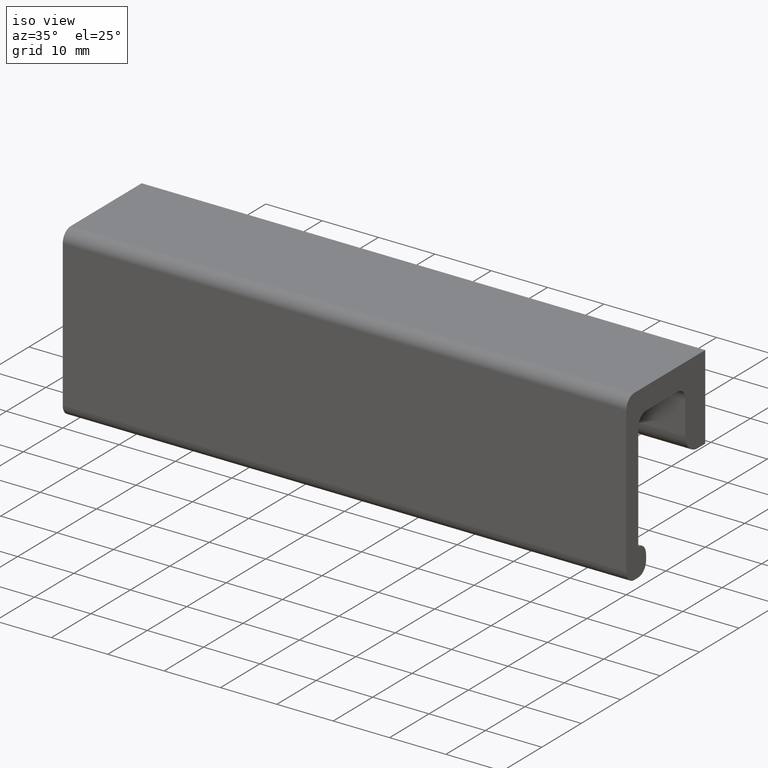
[diagram: clean part render]
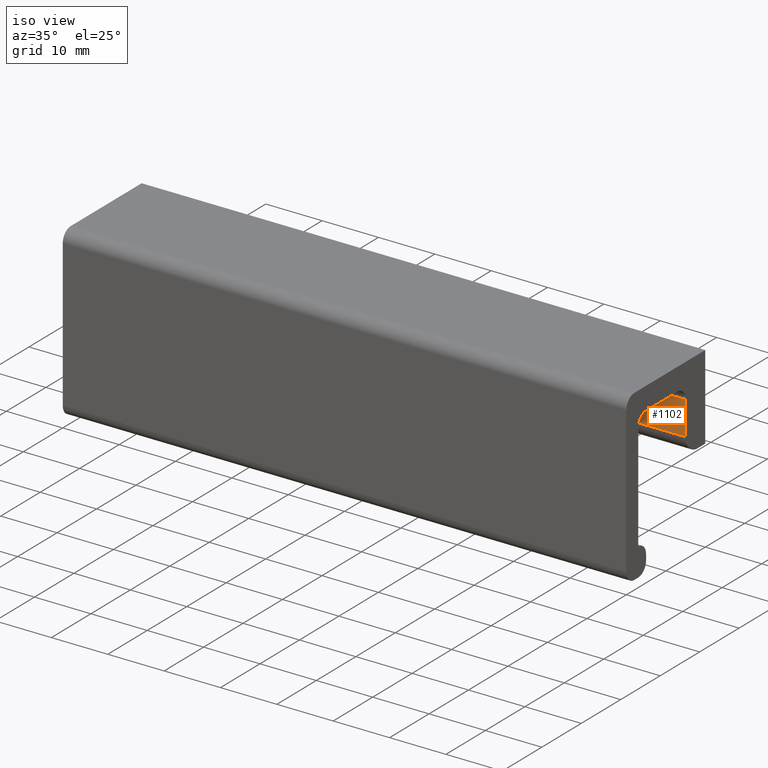
[diagram: same view with one face highlighted and labeled with its STEP entity id]
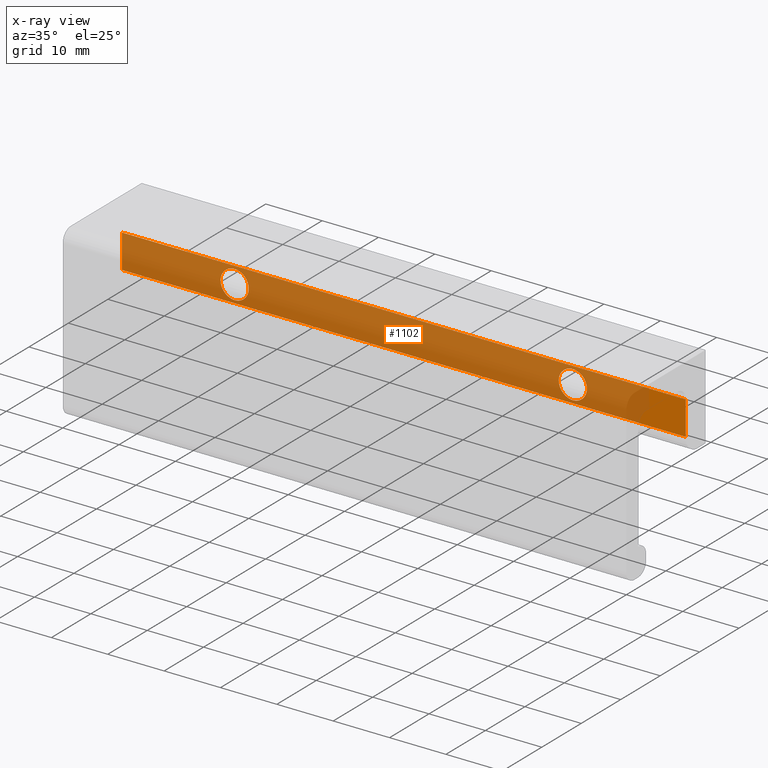
[diagram: x-ray of the same camera — body ghosted, the highlighted face saturated]
A machine part, iso view. The second image highlights one B-rep face of the part: STEP entity #1102.
The next image is the same camera in x-ray: the body ghosted, the highlighted face saturated — about 93% of this face is hidden behind the body in this view.
In plain terms, the highlighted face is a freeform B-spline surface patch.
Its self-contained STEP definition (entity closure, byte-faithful):
#96=CARTESIAN_POINT('',(22.492293334309771,-5.000000000000120,-9.196147739612506));
#97=VERTEX_POINT('',#96);
#103=CARTESIAN_POINT('',(20.0,-5.000000000000120,-6.499999999999999));
#104=VERTEX_POINT('',#103);
#105=CARTESIAN_POINT('',(22.492293334309771,-5.000000000000120,-9.196147739612506));
#106=CARTESIAN_POINT('',(22.500000000000000,-5.000000000000120,-9.098225267813426));
#107=CARTESIAN_POINT('',(22.500000000000000,-5.000000000000120,-9.0));
#108=CARTESIAN_POINT('',(22.500000000000000,-5.000000000000121,-6.499999999999999));
#109=CARTESIAN_POINT('',(20.0,-5.000000000000120,-6.499999999999999));
#117=(BOUNDED_CURVE()B_SPLINE_CURVE(2,(#105,#106,#107,#108,#109),.UNSPECIFIED.,.F.,.U.)B_SPLINE_CURVE_WITH_KNOTS((3,2,3),(0.736331300592475,0.750000000000000,1.0),.UNSPECIFIED.)CURVE()GEOMETRIC_REPRESENTATION_ITEM()RATIONAL_B_SPLINE_CURVE((0.969723356087730,0.983986122534146,1.0,0.707106781186548,1.0))REPRESENTATION_ITEM(''));
#118=EDGE_CURVE('',#97,#104,#117,.T.);
#120=CARTESIAN_POINT('',(17.507706665690240,-5.000000000000120,-8.803852260387494));
#121=VERTEX_POINT('',#120);
#122=CARTESIAN_POINT('',(20.0,-5.000000000000120,-6.499999999999999));
#123=CARTESIAN_POINT('',(17.689023771399341,-5.000000000000122,-6.499999999999999));
#124=CARTESIAN_POINT('',(17.507706665690236,-5.000000000000120,-8.803852260387494));
#132=(BOUNDED_CURVE()B_SPLINE_CURVE(2,(#122,#123,#124),.UNSPECIFIED.,.F.,.U.)B_SPLINE_CURVE_WITH_KNOTS((3,3),(0.0,0.236331300592475),.UNSPECIFIED.)CURVE()GEOMETRIC_REPRESENTATION_ITEM()RATIONAL_B_SPLINE_CURVE((1.0,0.723120658652401,0.969723356087730))REPRESENTATION_ITEM(''));
#133=EDGE_CURVE('',#104,#121,#132,.T.);
#179=CARTESIAN_POINT('',(20.0,-5.000000000000120,-11.500000000000000));
#180=VERTEX_POINT('',#179);
#181=CARTESIAN_POINT('',(17.507706665690232,-5.000000000000120,-8.803852260387494));
#182=CARTESIAN_POINT('',(17.500000000000004,-5.000000000000121,-8.901774732186572));
#183=CARTESIAN_POINT('',(17.500000000000000,-5.000000000000120,-9.0));
#184=CARTESIAN_POINT('',(17.499999999999996,-5.000000000000121,-11.500000000000000));
#185=CARTESIAN_POINT('',(20.0,-5.000000000000120,-11.500000000000000));
#193=(BOUNDED_CURVE()B_SPLINE_CURVE(2,(#181,#182,#183,#184,#185),.UNSPECIFIED.,.F.,.U.)B_SPLINE_CURVE_WITH_KNOTS((3,2,3),(0.236331300592475,0.250000000000000,0.500000000000000),.UNSPECIFIED.)CURVE()GEOMETRIC_REPRESENTATION_ITEM()RATIONAL_B_SPLINE_CURVE((0.969723356087730,0.983986122534146,1.0,0.707106781186548,1.0))REPRESENTATION_ITEM(''));
#194=EDGE_CURVE('',#121,#180,#193,.T.);
#196=CARTESIAN_POINT('',(20.0,-5.000000000000120,-11.500000000000000));
#197=CARTESIAN_POINT('',(22.310976228600680,-5.000000000000121,-11.499999999999998));
#198=CARTESIAN_POINT('',(22.492293334309764,-5.000000000000120,-9.196147739612506));
#206=(BOUNDED_CURVE()B_SPLINE_CURVE(2,(#196,#197,#198),.UNSPECIFIED.,.F.,.U.)B_SPLINE_CURVE_WITH_KNOTS((3,3),(0.500000000000000,0.736331300592476),.UNSPECIFIED.)CURVE()GEOMETRIC_REPRESENTATION_ITEM()RATIONAL_B_SPLINE_CURVE((1.0,0.723120658652400,0.969723356087732))REPRESENTATION_ITEM(''));
#207=EDGE_CURVE('',#180,#97,#206,.T.);
#278=CARTESIAN_POINT('',(82.492293334309764,-5.000000000000120,-9.196147739612506));
#279=VERTEX_POINT('',#278);
#285=CARTESIAN_POINT('',(80.0,-5.000000000000120,-6.499999999999999));
#286=VERTEX_POINT('',#285);
#287=CARTESIAN_POINT('',(82.492293334309764,-5.000000000000120,-9.196147739612506));
#288=CARTESIAN_POINT('',(82.500000000000000,-5.000000000000120,-9.098225267813426));
#289=CARTESIAN_POINT('',(82.500000000000000,-5.000000000000120,-9.0));
#290=CARTESIAN_POINT('',(82.500000000000000,-5.000000000000121,-6.499999999999999));
#291=CARTESIAN_POINT('',(80.0,-5.000000000000120,-6.499999999999999));
#299=(BOUNDED_CURVE()B_SPLINE_CURVE(2,(#287,#288,#289,#290,#291),.UNSPECIFIED.,.F.,.U.)B_SPLINE_CURVE_WITH_KNOTS((3,2,3),(0.736331300592475,0.750000000000000,1.0),.UNSPECIFIED.)CURVE()GEOMETRIC_REPRESENTATION_ITEM()RATIONAL_B_SPLINE_CURVE((0.969723356087730,0.983986122534146,1.0,0.707106781186548,1.0))REPRESENTATION_ITEM(''));
#300=EDGE_CURVE('',#279,#286,#299,.T.);
#302=CARTESIAN_POINT('',(77.507706665690222,-5.000000000000120,-8.803852260387494));
#303=VERTEX_POINT('',#302);
#304=CARTESIAN_POINT('',(80.0,-5.000000000000120,-6.499999999999999));
#305=CARTESIAN_POINT('',(77.689023771399320,-5.000000000000120,-6.499999999999999));
#306=CARTESIAN_POINT('',(77.507706665690222,-5.000000000000120,-8.803852260387494));
#314=(BOUNDED_CURVE()B_SPLINE_CURVE(2,(#304,#305,#306),.UNSPECIFIED.,.F.,.U.)B_SPLINE_CURVE_WITH_KNOTS((3,3),(0.0,0.236331300592475),.UNSPECIFIED.)CURVE()GEOMETRIC_REPRESENTATION_ITEM()RATIONAL_B_SPLINE_CURVE((1.0,0.723120658652401,0.969723356087730))REPRESENTATION_ITEM(''));
#315=EDGE_CURVE('',#286,#303,#314,.T.);
#361=CARTESIAN_POINT('',(80.0,-5.000000000000120,-11.500000000000000));
#362=VERTEX_POINT('',#361);
#363=CARTESIAN_POINT('',(77.507706665690222,-5.000000000000120,-8.803852260387494));
#364=CARTESIAN_POINT('',(77.500000000000000,-5.000000000000120,-8.901774732186572));
#365=CARTESIAN_POINT('',(77.500000000000000,-5.000000000000120,-9.0));
#366=CARTESIAN_POINT('',(77.500000000000014,-5.000000000000121,-11.500000000000000));
#367=CARTESIAN_POINT('',(80.0,-5.000000000000120,-11.500000000000000));
#375=(BOUNDED_CURVE()B_SPLINE_CURVE(2,(#363,#364,#365,#366,#367),.UNSPECIFIED.,.F.,.U.)B_SPLINE_CURVE_WITH_KNOTS((3,2,3),(0.236331300592475,0.250000000000000,0.500000000000000),.UNSPECIFIED.)CURVE()GEOMETRIC_REPRESENTATION_ITEM()RATIONAL_B_SPLINE_CURVE((0.969723356087730,0.983986122534146,1.0,0.707106781186548,1.0))REPRESENTATION_ITEM(''));
#376=EDGE_CURVE('',#303,#362,#375,.T.);
#378=CARTESIAN_POINT('',(80.0,-5.000000000000120,-11.500000000000000));
#379=CARTESIAN_POINT('',(82.310976228600694,-5.000000000000121,-11.499999999999998));
#380=CARTESIAN_POINT('',(82.492293334309764,-5.000000000000120,-9.196147739612506));
#388=(BOUNDED_CURVE()B_SPLINE_CURVE(2,(#378,#379,#380),.UNSPECIFIED.,.F.,.U.)B_SPLINE_CURVE_WITH_KNOTS((3,3),(0.500000000000000,0.736331300592476),.UNSPECIFIED.)CURVE()GEOMETRIC_REPRESENTATION_ITEM()RATIONAL_B_SPLINE_CURVE((1.0,0.723120658652400,0.969723356087732))REPRESENTATION_ITEM(''));
#389=EDGE_CURVE('',#362,#279,#388,.T.);
#451=CARTESIAN_POINT('',(0.0,-5.000000000000091,-12.0));
#452=VERTEX_POINT('',#451);
#466=CARTESIAN_POINT('',(0.0,-5.0,-6.0));
#467=VERTEX_POINT('',#466);
#468=CARTESIAN_POINT('',(0.0,-5.0,-6.0));
#469=CARTESIAN_POINT('',(0.0,-5.000000000000091,-12.0));
#470=QUASI_UNIFORM_CURVE('',1,(#468,#469),.UNSPECIFIED.,.F.,.U.);
#471=EDGE_CURVE('',#467,#452,#470,.T.);
#701=CARTESIAN_POINT('',(100.0,-5.0,-6.0));
#702=VERTEX_POINT('',#701);
#716=CARTESIAN_POINT('',(100.0,-5.000000000000091,-12.0));
#717=VERTEX_POINT('',#716);
#718=CARTESIAN_POINT('',(100.0,-5.0,-6.0));
#719=CARTESIAN_POINT('',(100.0,-5.000000000000091,-12.0));
#720=QUASI_UNIFORM_CURVE('',1,(#718,#719),.UNSPECIFIED.,.F.,.U.);
#721=EDGE_CURVE('',#702,#717,#720,.T.);
#817=CARTESIAN_POINT('',(100.0,-5.000000000000091,-12.0));
#818=CARTESIAN_POINT('',(0.0,-5.000000000000091,-12.0));
#819=QUASI_UNIFORM_CURVE('',1,(#817,#818),.UNSPECIFIED.,.F.,.U.);
#820=EDGE_CURVE('',#717,#452,#819,.T.);
#840=CARTESIAN_POINT('',(100.0,-5.0,-6.0));
#841=CARTESIAN_POINT('',(0.0,-5.0,-6.0));
#842=QUASI_UNIFORM_CURVE('',1,(#840,#841),.UNSPECIFIED.,.F.,.U.);
#843=EDGE_CURVE('',#702,#467,#842,.T.);
#1079=CARTESIAN_POINT('',(-4.994999806180597,-5.000000000000091,-12.299699988370840));
#1080=CARTESIAN_POINT('',(-4.994999806180597,-5.000000000000091,-5.700299850696622));
#1081=CARTESIAN_POINT('',(104.995002488389600,-5.000000000000091,-12.299699988370840));
#1082=CARTESIAN_POINT('',(104.995002488389600,-5.000000000000091,-5.700299850696622));
#1083=B_SPLINE_SURFACE_WITH_KNOTS('',1,1,((#1079,#1081),(#1080,#1082)),.UNSPECIFIED.,.F.,.F.,.U.,(2,2),(2,2),(0.0,6.599400137674216),(0.0,109.990002294570200),.UNSPECIFIED.);
#1084=ORIENTED_EDGE('',*,*,#471,.T.);
#1085=ORIENTED_EDGE('',*,*,#820,.F.);
#1086=ORIENTED_EDGE('',*,*,#721,.F.);
#1087=ORIENTED_EDGE('',*,*,#843,.T.);
#1088=EDGE_LOOP('',(#1084,#1085,#1086,#1087));
#1089=FACE_OUTER_BOUND('',#1088,.T.);
#1090=ORIENTED_EDGE('',*,*,#389,.F.);
#1091=ORIENTED_EDGE('',*,*,#376,.F.);
#1092=ORIENTED_EDGE('',*,*,#315,.F.);
#1093=ORIENTED_EDGE('',*,*,#300,.F.);
#1094=EDGE_LOOP('',(#1090,#1091,#1092,#1093));
#1095=FACE_BOUND('',#1094,.T.);
#1096=ORIENTED_EDGE('',*,*,#207,.F.);
#1097=ORIENTED_EDGE('',*,*,#194,.F.);
#1098=ORIENTED_EDGE('',*,*,#133,.F.);
#1099=ORIENTED_EDGE('',*,*,#118,.F.);
#1100=EDGE_LOOP('',(#1096,#1097,#1098,#1099));
#1101=FACE_BOUND('',#1100,.T.);
#1102=ADVANCED_FACE('',(#1089,#1095,#1101),#1083,.F.);